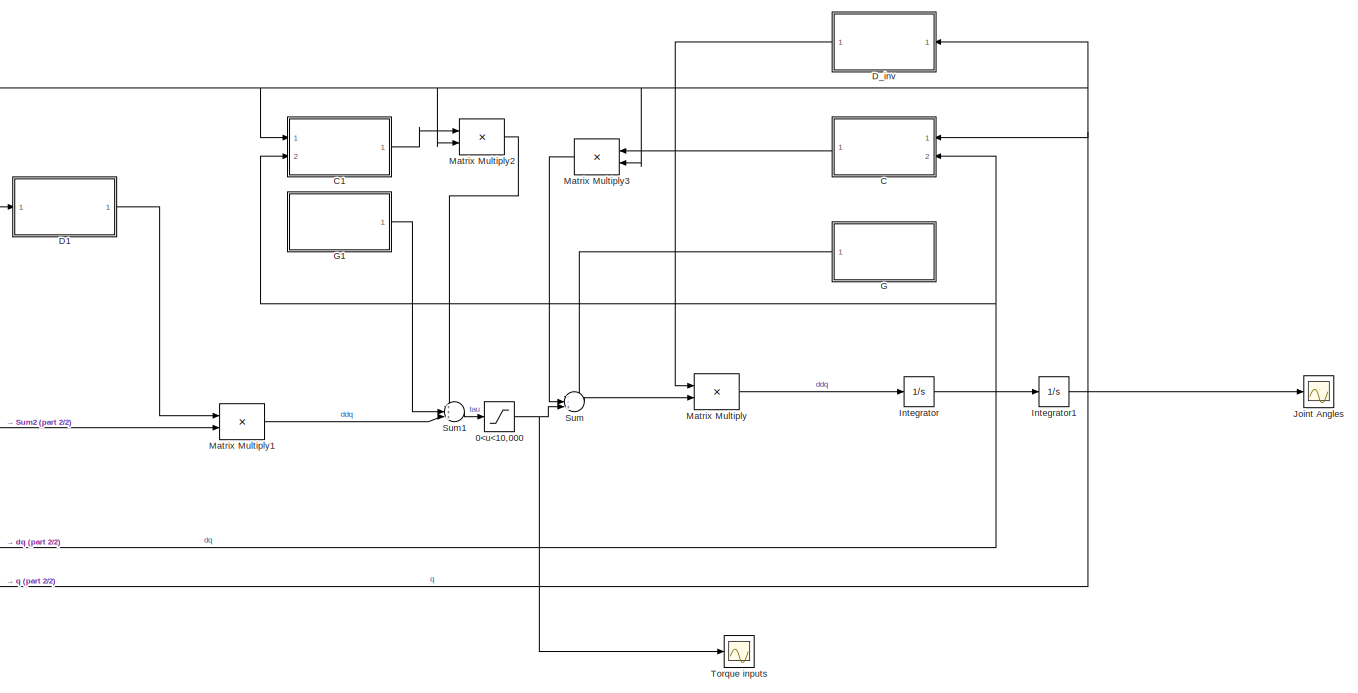
[diagram: root canvas - part 1/2, right side, full height]
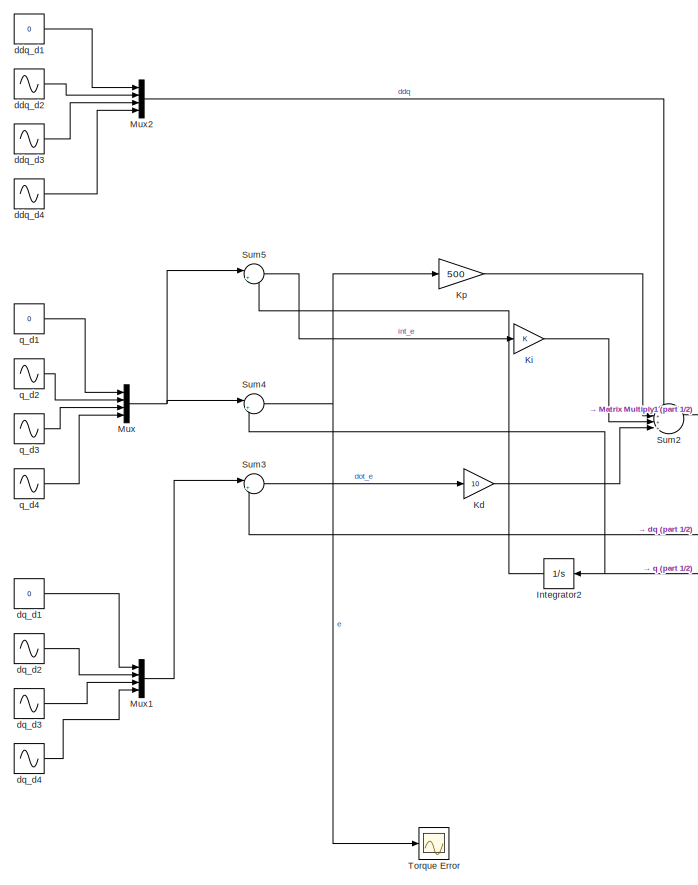
[diagram: root canvas - part 2/2, left side, full height]
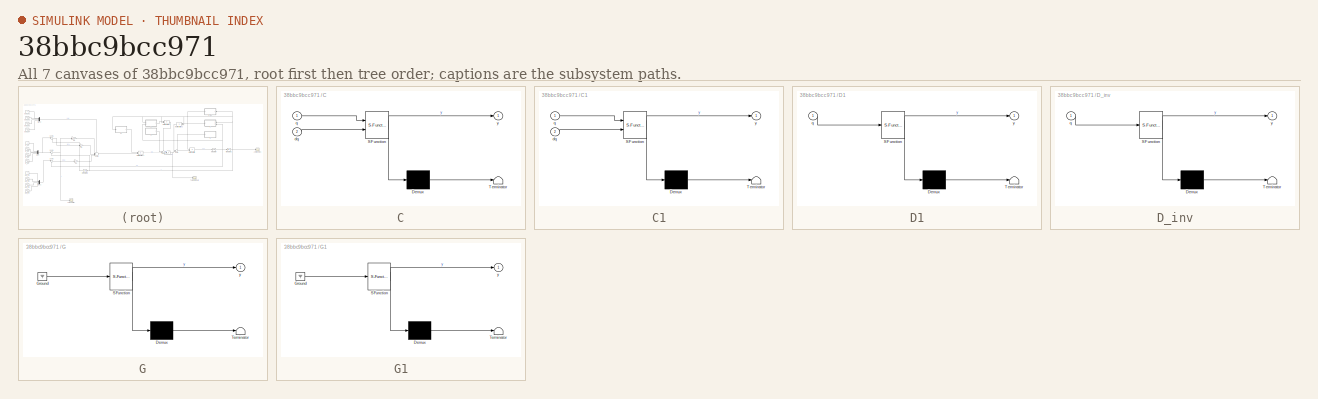
[diagram: thumbnail index - all 7 canvases of the model, root first then tree order]
MODEL slx_38bbc9bcc971
KIND model
CONFIG AbsTol = auto
CONFIG EnableMultiTasking = off
CONFIG FixedStep = auto
CONFIG MaxStep = auto
CONFIG MinStep = auto
CONFIG RelTol = 1e-3
CONFIG SampleTimeConstraint = Unconstrained
CONFIG SolverName = VariableStepAuto
CONFIG StartTime = 0.0
CONFIG StopTime = 10
BLOCK [Saturate] 0<u<10,000
  LowerLimit = -50
  UpperLimit = 50
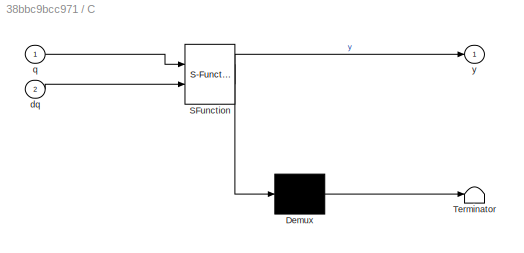
BLOCK [SubSystem] C
  ErrorFcn = Stateflow.Translate.translate
  NameLocation = top
  PermitHierarchicalResolution = ExplicitOnly
  Ports = [2, 1]
  RequestExecContextInheritance = off
  SFBlockType = MATLAB Function
  TreatAsAtomicUnit = on
BLOCK [Demux] C/ Demux 
  Outputs = 1
  Ports = [1, 1]
BLOCK [S-Function] C/ SFunction 
  EnableBusSupport = on
  FunctionName = sf_sfun
  PortCounts = [2 2]
  Ports = [2, 2]
  SFcnIsStateOwnerBlock = off
  SFunctionDeploymentMode = off
  Tag = Stateflow S-Function 2
BLOCK [Terminator] C/ Terminator 
BLOCK [Inport] C/dq
  Port = 2
BLOCK [Inport] C/q
BLOCK [Outport] C/y
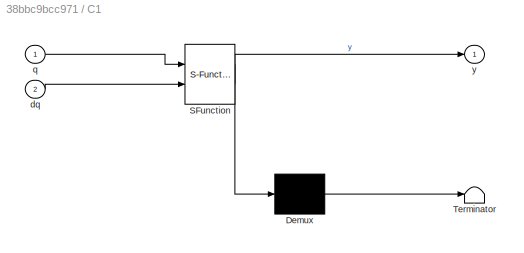
BLOCK [SubSystem] C1
  ErrorFcn = Stateflow.Translate.translate
  PermitHierarchicalResolution = ExplicitOnly
  Ports = [2, 1]
  RequestExecContextInheritance = off
  SFBlockType = MATLAB Function
  TreatAsAtomicUnit = on
BLOCK [Demux] C1/ Demux 
  Outputs = 1
  Ports = [1, 1]
BLOCK [S-Function] C1/ SFunction 
  EnableBusSupport = on
  FunctionName = sf_sfun
  PortCounts = [2 2]
  Ports = [2, 2]
  SFcnIsStateOwnerBlock = off
  SFunctionDeploymentMode = off
  Tag = Stateflow S-Function 5
BLOCK [Terminator] C1/ Terminator 
BLOCK [Inport] C1/dq
  Port = 2
BLOCK [Inport] C1/q
BLOCK [Outport] C1/y
BLOCK [SubSystem] D1
  ErrorFcn = Stateflow.Translate.translate
  PermitHierarchicalResolution = ExplicitOnly
  Ports = [1, 1]
  RequestExecContextInheritance = off
  SFBlockType = MATLAB Function
  TreatAsAtomicUnit = on
BLOCK [Demux] D1/ Demux 
  Outputs = 1
  Ports = [1, 1]
BLOCK [S-Function] D1/ SFunction 
  EnableBusSupport = on
  FunctionName = sf_sfun
  PortCounts = [1 2]
  Ports = [1, 2]
  SFcnIsStateOwnerBlock = off
  SFunctionDeploymentMode = off
  Tag = Stateflow S-Function 4
BLOCK [Terminator] D1/ Terminator 
BLOCK [Inport] D1/q
BLOCK [Outport] D1/y
BLOCK [SubSystem] D_inv
  ErrorFcn = Stateflow.Translate.translate
  NameLocation = top
  PermitHierarchicalResolution = ExplicitOnly
  Ports = [1, 1]
  RequestExecContextInheritance = off
  SFBlockType = MATLAB Function
  TreatAsAtomicUnit = on
BLOCK [Demux] D_inv/ Demux 
  Outputs = 1
  Ports = [1, 1]
BLOCK [S-Function] D_inv/ SFunction 
  EnableBusSupport = on
  FunctionName = sf_sfun
  PortCounts = [1 2]
  Ports = [1, 2]
  SFcnIsStateOwnerBlock = off
  SFunctionDeploymentMode = off
  Tag = Stateflow S-Function 1
BLOCK [Terminator] D_inv/ Terminator 
BLOCK [Inport] D_inv/q
BLOCK [Outport] D_inv/y
BLOCK [SubSystem] G
  ErrorFcn = Stateflow.Translate.translate
  NameLocation = top
  PermitHierarchicalResolution = ExplicitOnly
  Ports = [0, 1]
  RequestExecContextInheritance = off
  SFBlockType = MATLAB Function
  TreatAsAtomicUnit = on
BLOCK [Demux] G/ Demux 
  Outputs = 1
  Ports = [1, 1]
BLOCK [Ground] G/ Ground 
BLOCK [S-Function] G/ SFunction 
  EnableBusSupport = on
  FunctionName = sf_sfun
  PortCounts = [1 2]
  Ports = [1, 2]
  SFcnIsStateOwnerBlock = off
  SFunctionDeploymentMode = off
  Tag = Stateflow S-Function 3
BLOCK [Terminator] G/ Terminator 
BLOCK [Outport] G/y
BLOCK [SubSystem] G1
  ErrorFcn = Stateflow.Translate.translate
  PermitHierarchicalResolution = ExplicitOnly
  Ports = [0, 1]
  RequestExecContextInheritance = off
  SFBlockType = MATLAB Function
  TreatAsAtomicUnit = on
BLOCK [Demux] G1/ Demux 
  Outputs = 1
  Ports = [1, 1]
BLOCK [Ground] G1/ Ground 
BLOCK [S-Function] G1/ SFunction 
  EnableBusSupport = on
  FunctionName = sf_sfun
  PortCounts = [1 2]
  Ports = [1, 2]
  SFcnIsStateOwnerBlock = off
  SFunctionDeploymentMode = off
  Tag = Stateflow S-Function 6
BLOCK [Terminator] G1/ Terminator 
BLOCK [Outport] G1/y
BLOCK [Integrator] Integrator
  Ports = [1, 1]
BLOCK [Integrator] Integrator1
  Ports = [1, 1]
BLOCK [Integrator] Integrator2
  NameLocation = top
  Ports = [1, 1]
BLOCK [Scope] Joint Angles
  Floating = off
  NumInputPorts = 1
  Ports = [1]
  ScopeSpecificationString = Simulink.scopes.TimeScopeBlockCfg('CurrentConfiguration', extmgr.ConfigurationSet(extmgr.Configuration('Core','General UI',true),extmgr.Configuration('Core','Source UI',true),extmgr.Configuration('Sources','WiredSimulink',true),extmgr.Configuration('Visuals','Time Domain',true,'SerializedDisplays',{struct('MinYLimReal','-0.55094','MaxYLimReal','0.9239','YLabelReal','','MinYLimMag','0.00000','MaxYL...<+1366ch>
BLOCK [Gain] Kd
  Gain = 10
BLOCK [Gain] Ki
BLOCK [Gain] Kp
  Gain = 500
BLOCK [Product] Matrix Multiply
  Multiplication = Matrix(*)
  Ports = [2, 1]
BLOCK [Product] Matrix Multiply1
  Multiplication = Matrix(*)
  Ports = [2, 1]
BLOCK [Product] Matrix Multiply2
  Multiplication = Matrix(*)
  Ports = [2, 1]
BLOCK [Product] Matrix Multiply3
  Multiplication = Matrix(*)
  NameLocation = top
  Ports = [2, 1]
BLOCK [Mux] Mux
  DisplayOption = bar
  Ports = [4, 1]
BLOCK [Mux] Mux1
  DisplayOption = bar
  Ports = [4, 1]
BLOCK [Mux] Mux2
  DisplayOption = bar
  Ports = [4, 1]
BLOCK [Sum] Sum
  Inputs = --+|
  Ports = [3, 1]
BLOCK [Sum] Sum1
  Inputs = +++|
  Ports = [3, 1]
BLOCK [Sum] Sum2
  Inputs = ++++|
  Ports = [4, 1]
BLOCK [Sum] Sum3
  Inputs = |+-
  Ports = [2, 1]
BLOCK [Sum] Sum4
  Inputs = |+-
  Ports = [2, 1]
BLOCK [Sum] Sum5
  Inputs = |+-
  Ports = [2, 1]
BLOCK [Scope] Torque Error
  Floating = off
  NumInputPorts = 1
  Ports = [1]
  ScopeSpecificationString = Simulink.scopes.TimeScopeBlockCfg('CurrentConfiguration', extmgr.ConfigurationSet(extmgr.Configuration('Core','General UI',true),extmgr.Configuration('Core','Source UI',true),extmgr.Configuration('Sources','WiredSimulink',true,'DataLoggingVariableName','ScopeData3'),extmgr.Configuration('Visuals','Time Domain',true,'SerializedDisplays',{struct('MinYLimReal','-0.88888','MaxYLimReal','0.66618','YLab...<+1499ch>
BLOCK [Scope] Torque inputs
  Floating = off
  NumInputPorts = 1
  Ports = [1]
  ScopeSpecificationString = Simulink.scopes.TimeScopeBlockCfg('CurrentConfiguration', extmgr.ConfigurationSet(extmgr.Configuration('Core','General UI',true),extmgr.Configuration('Core','Source UI',true),extmgr.Configuration('Sources','WiredSimulink',true,'DataLoggingVariableName','ScopeData1'),extmgr.Configuration('Visuals','Time Domain',true,'SerializedDisplays',{struct('MinYLimReal','-62.5','MaxYLimReal','62.5','YLabelReal...<+1760ch>
BLOCK [Constant] ddq_d1
  Value = 0
BLOCK [Sin] ddq_d2
  Amplitude = -0.2
  Ports = [0, 1]
  SampleTime = 0
BLOCK [Sin] ddq_d3
  Amplitude = 0.3
  Frequency = 2
  Phase = -pi/2
  Ports = [0, 1]
  SampleTime = 0
BLOCK [Sin] ddq_d4
  Amplitude = -0.4
  Ports = [0, 1]
  SampleTime = 0
BLOCK [Constant] dq_d1
  Value = 0
BLOCK [Sin] dq_d2
  Amplitude = -0.2
  Phase = -pi/2
  Ports = [0, 1]
  SampleTime = 0
BLOCK [Sin] dq_d3
  Amplitude = -0.3
  Ports = [0, 1]
  SampleTime = 0
BLOCK [Sin] dq_d4
  Amplitude = -0.4
  Phase = -pi/2
  Ports = [0, 1]
  SampleTime = 0
BLOCK [Constant] q_d1
  Value = 0
BLOCK [Sin] q_d2
  Amplitude = 0.2
  Ports = [0, 1]
  SampleTime = 0
BLOCK [Sin] q_d3
  Amplitude = -0.3
  Phase = -pi/2
  Ports = [0, 1]
  SampleTime = 0
BLOCK [Sin] q_d4
  Amplitude = 0.4
  Ports = [0, 1]
  SampleTime = 0
NET 0<u<10,000:1 -> Sum:3, Torque inputs:1
LINE C1:1 -> Matrix Multiply2:1
LINE C:1 -> Matrix Multiply3:1
LINE D1:1 -> Matrix Multiply1:1
LINE D_inv:1 -> Matrix Multiply:1
LINE G1:1 -> Sum1:2
LINE G:1 -> Sum:1
NET Integrator1:1 -> C1:1, C:1, D1:1, D_inv:1, Integrator2:1, Joint Angles:1, Matrix Multiply2:2, Matrix Multiply3:2, Sum4:2
LINE Integrator2:1 -> Sum5:2
NET Integrator:1 -> C1:2, C:2, Integrator1:1, Sum3:2
LINE Kd:1 -> Sum2:4
LINE Ki:1 -> Sum2:3
LINE Kp:1 -> Sum2:2
LINE Matrix Multiply1:1 -> Sum1:3
LINE Matrix Multiply2:1 -> Sum1:1
LINE Matrix Multiply3:1 -> Sum:2
LINE Matrix Multiply:1 -> Integrator:1
LINE Mux1:1 -> Sum3:1
LINE Mux2:1 -> Sum2:1
NET Mux:1 -> Sum4:1, Sum5:1
LINE Sum1:1 -> 0<u<10,000:1
LINE Sum2:1 -> Matrix Multiply1:2
LINE Sum3:1 -> Kd:1
NET Sum4:1 -> Kp:1, Torque Error:1
LINE Sum5:1 -> Ki:1
LINE Sum:1 -> Matrix Multiply:2
LINE ddq_d1:1 -> Mux2:1
LINE ddq_d2:1 -> Mux2:2
LINE ddq_d3:1 -> Mux2:3
LINE ddq_d4:1 -> Mux2:4
LINE dq_d1:1 -> Mux1:1
LINE dq_d2:1 -> Mux1:2
LINE dq_d3:1 -> Mux1:3
LINE dq_d4:1 -> Mux1:4
LINE q_d1:1 -> Mux:1
LINE q_d2:1 -> Mux:2
LINE q_d3:1 -> Mux:3
LINE q_d4:1 -> Mux:4
note: NET lines group one-source signal fan-out (src -> all destinations, sorted); 1:1 wires keep LINE
CHART C states=1 transitions=1
  STATE_LABEL 'eML_blk_kernel()'
  STATE_LABEL 'SCRIPT:\nfunction y  = fcn(q, dq)\n \nC=zeros(4,4);\nC(2,2) = - dq(4)*(0.12*sin(q(3)+q(4)) + 0.12*sin(q(4))) - dq(3)*(0.12*sin(q(3)+q(4)) + 0.704*sin(q(3)));\nC(2,3) = - dq(4)*(0.12*sin(q(3)+q(4)) + 0.2*sin(q(4))) - dq(3)*(0.12*sin(q(3)+q(4)) + 0.96*sin(q(3))) - dq(2)*(0.12*sin(q(3)+q(4)) + 0.704*sin(q(3)));\nC(2,4) = - dq(4)*(0.12*sin(q(3)+q(4)) + 0.12*sin(q(4))) - dq(3)*(0.12*sin(q(3)+q(4)) + 0.2*sin(...<+386ch>'
CHART G states=1 transitions=1
  STATE_LABEL 'eML_blk_kernel()'
  STATE_LABEL 'SCRIPT:\nfunction y = fcn()\n\nG=zeros(4,1);\nmass = [1;1.2;1;0.6];\nm1 = mass(1);\nm2 = mass(2);\nm3 = mass(3);\nm4 = mass(4);\ng = 9.8;\n\n\n\nG(1) = (m1 + m2 + m3 + m4) * g;\n\ny = G;\n'
CHART D1 states=1 transitions=1
  STATE_LABEL 'eML_blk_kernel()'
  STATE_LABEL 'SCRIPT:\nfunction y = fcn(q)\n\nD=zeros(4,4); \n\nD(1,1) = 1;\nD(2,2) = 1.408*cos(q(3))+0.24*cos(q(4))+0.24*cos(q(3)+q(4));\nD(2,3) = 0.96*cos(q(3))+0.4*cos(q(4))+0.12*cos(q(3)+q(4))+1.1255;\nD(2,4) = 0.12*cos(q(4))+0.12*cos(q(3)+q(4))+0.1125; \nD(3,2) = 0.96*cos(q(3))+0.4*cos(q(4))+0.12*cos(q(3)+q(4))+1.1255;\nD(3,3) = 0.24*cos(q(4))+0.8695;\nD(3,4) = 0.12*cos(q(4))+0.1125;\nD(4,2) = 0.12*cos(q(4))+0.12*cos(...<+75ch>'
CHART C1 states=1 transitions=1
  STATE_LABEL 'eML_blk_kernel()'
  STATE_LABEL 'SCRIPT:\nfunction y = fcn(q,dq)\n \nC=zeros(4,4);\nC(2,2) = - dq(4)*(0.12*sin(q(3)+q(4)) + 0.12*sin(q(4))) - dq(3)*(0.12*sin(q(3)+q(4)) + 0.704*sin(q(3)));\nC(2,3) = - dq(4)*(0.12*sin(q(3)+q(4)) + 0.2*sin(q(4))) - dq(3)*(0.12*sin(q(3)+q(4)) + 0.96*sin(q(3))) - dq(2)*(0.12*sin(q(3)+q(4)) + 0.704*sin(q(3)));\nC(2,4) = - dq(4)*(0.12*sin(q(3)+q(4)) + 0.12*sin(q(4))) - dq(3)*(0.12*sin(q(3)+q(4)) + 0.2*sin(q(...<+384ch>'
CHART G1 states=1 transitions=1
  STATE_LABEL 'eML_blk_kernel()'
  STATE_LABEL 'SCRIPT:\nfunction y = fcn()\n\nG=zeros(4,1);\nmass = [1;1.2;1;0.6];\nm1 = mass(1);\nm2 = mass(2);\nm3 = mass(3);\nm4 = mass(4);\ng = 9.8;\n\n\n\nG(1) = (m1 + m2 + m3 + m4) * g;\n\ny = G;\n'
CHART D_inv states=1 transitions=1
  STATE_LABEL 'eML_blk_kernel()'
  STATE_LABEL 'SCRIPT:\nfunction y = fcn(q)\n\nD=zeros(4,4); \n\nD(1,1) = 1;\nD(2,2) = 1.408*cos(q(3))+0.24*cos(q(4))+0.24*cos(q(3)+q(4));\nD(2,3) = 0.96*cos(q(3))+0.4*cos(q(4))+0.12*cos(q(3)+q(4))+1.1255;\nD(2,4) = 0.12*cos(q(4))+0.12*cos(q(3)+q(4))+0.1125; \nD(3,2) = 0.96*cos(q(3))+0.4*cos(q(4))+0.12*cos(q(3)+q(4))+1.1255;\nD(3,3) = 0.24*cos(q(4))+0.8695;\nD(3,4) = 0.12*cos(q(4))+0.1125;\nD(4,2) = 0.12*cos(q(4))+0.12*cos(...<+80ch>'
CHART  states=0 transitions=0
CHART  states=0 transitions=0
CHART  states=0 transitions=0
CHART  states=0 transitions=0
CHART  states=0 transitions=0
CHART  states=0 transitions=0
